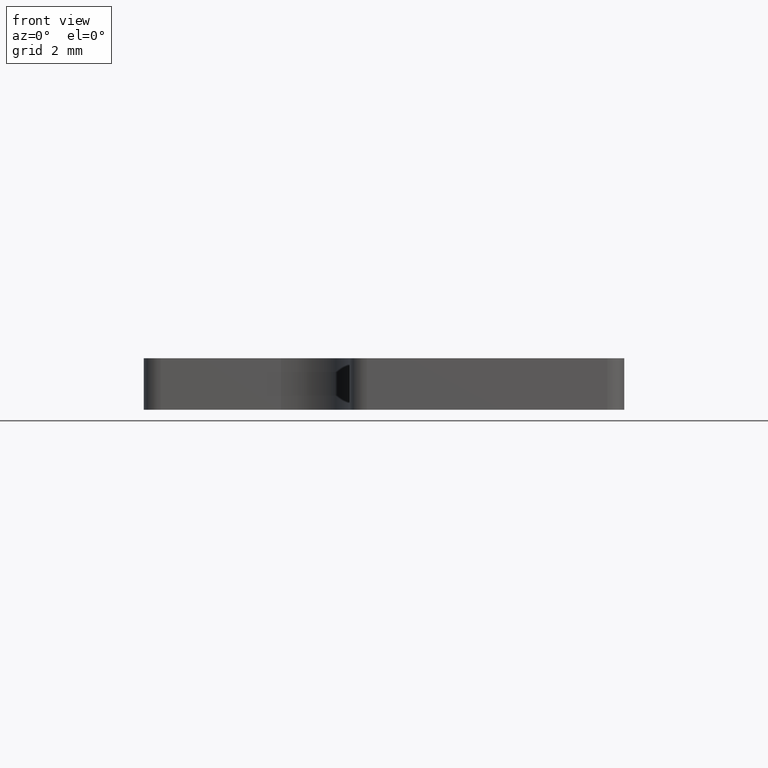
[diagram: clean part render]
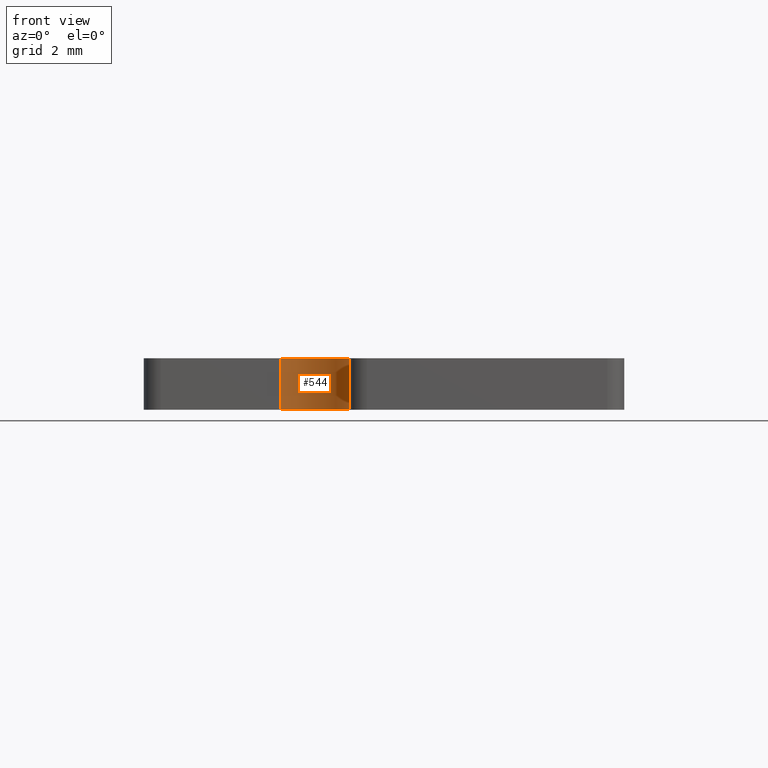
[diagram: same view with one face highlighted and labeled with its STEP entity id]
A machine part, front view. The second image highlights one B-rep face of the part: STEP entity #544.
In plain terms, the highlighted cylindrical surface (partial cylindrical patch) has radius 2 mm, axis along (0, 0, 1).
Its self-contained STEP definition (entity closure, byte-faithful):
#22 = VERTEX_POINT('',#23);
#23 = CARTESIAN_POINT('',(-2.,12.,0.));
#32 = PLANE('',#33);
#33 = AXIS2_PLACEMENT_3D('',#34,#35,#36);
#34 = CARTESIAN_POINT('',(0.,12.,0.));
#35 = DIRECTION('',(0.,-1.,0.));
#36 = DIRECTION('',(-1.,0.,0.));
#44 = PLANE('',#45);
#45 = AXIS2_PLACEMENT_3D('',#46,#47,#48);
#46 = CARTESIAN_POINT('',(2.2,9.2,0.));
#47 = DIRECTION('',(0.,0.,1.));
#48 = DIRECTION('',(1.,0.,0.));
#56 = EDGE_CURVE('',#22,#57,#59,.T.);
#57 = VERTEX_POINT('',#58);
#58 = CARTESIAN_POINT('',(-2.,12.,1.5));
#59 = SURFACE_CURVE('',#60,(#64,#71),.PCURVE_S1.);
#60 = LINE('',#61,#62);
#61 = CARTESIAN_POINT('',(-2.,12.,0.));
#62 = VECTOR('',#63,1.);
#63 = DIRECTION('',(0.,0.,1.));
#64 = PCURVE('',#32,#65);
#65 = DEFINITIONAL_REPRESENTATION('',(#66),#70);
#66 = LINE('',#67,#68);
#67 = CARTESIAN_POINT('',(2.,0.));
#68 = VECTOR('',#69,1.);
#69 = DIRECTION('',(0.,-1.));
#70 = ( GEOMETRIC_REPRESENTATION_CONTEXT(2) 
PARAMETRIC_REPRESENTATION_CONTEXT() REPRESENTATION_CONTEXT('2D SPACE',''
  ) );
#71 = PCURVE('',#72,#77);
#72 = CYLINDRICAL_SURFACE('',#73,2.);
#73 = AXIS2_PLACEMENT_3D('',#74,#75,#76);
#74 = CARTESIAN_POINT('',(-2.,10.,0.));
#75 = DIRECTION('',(0.,0.,1.));
#76 = DIRECTION('',(0.,1.,0.));
#77 = DEFINITIONAL_REPRESENTATION('',(#78),#82);
#78 = LINE('',#79,#80);
#79 = CARTESIAN_POINT('',(-0.,0.));
#80 = VECTOR('',#81,1.);
#81 = DIRECTION('',(-0.,1.));
#82 = ( GEOMETRIC_REPRESENTATION_CONTEXT(2) 
PARAMETRIC_REPRESENTATION_CONTEXT() REPRESENTATION_CONTEXT('2D SPACE',''
  ) );
#100 = PLANE('',#101);
#101 = AXIS2_PLACEMENT_3D('',#102,#103,#104);
#102 = CARTESIAN_POINT('',(2.2,9.2,1.5));
#103 = DIRECTION('',(0.,0.,1.));
#104 = DIRECTION('',(1.,0.,0.));
#142 = EDGE_CURVE('',#22,#143,#145,.T.);
#143 = VERTEX_POINT('',#144);
#144 = CARTESIAN_POINT('',(4.440892098501E-16,10.,0.));
#145 = SURFACE_CURVE('',#146,(#151,#162),.PCURVE_S1.);
#146 = CIRCLE('',#147,2.);
#147 = AXIS2_PLACEMENT_3D('',#148,#149,#150);
#148 = CARTESIAN_POINT('',(-2.,10.,0.));
#149 = DIRECTION('',(-0.,-0.,-1.));
#150 = DIRECTION('',(0.,-1.,0.));
#151 = PCURVE('',#44,#152);
#152 = DEFINITIONAL_REPRESENTATION('',(#153),#161);
#153 = ( BOUNDED_CURVE() B_SPLINE_CURVE(2,(#154,#155,#156,#157,#158,#159
,#160),.UNSPECIFIED.,.F.,.F.) B_SPLINE_CURVE_WITH_KNOTS((1,2,2,2,2,1),(
    -2.094395102393,0.,2.094395102393,4.188790204786,6.28318530718,
8.377580409573),.UNSPECIFIED.) CURVE() GEOMETRIC_REPRESENTATION_ITEM() 
RATIONAL_B_SPLINE_CURVE((1.,0.5,1.,0.5,1.,0.5,1.)) REPRESENTATION_ITEM(
  '') );
#154 = CARTESIAN_POINT('',(-4.2,-1.2));
#155 = CARTESIAN_POINT('',(-7.664101615138,-1.2));
#156 = CARTESIAN_POINT('',(-5.932050807569,1.8));
#157 = CARTESIAN_POINT('',(-4.2,4.8));
#158 = CARTESIAN_POINT('',(-2.467949192431,1.8));
#159 = CARTESIAN_POINT('',(-0.735898384862,-1.2));
#160 = CARTESIAN_POINT('',(-4.2,-1.2));
#161 = ( GEOMETRIC_REPRESENTATION_CONTEXT(2) 
PARAMETRIC_REPRESENTATION_CONTEXT() REPRESENTATION_CONTEXT('2D SPACE',''
  ) );
#162 = PCURVE('',#72,#163);
#163 = DEFINITIONAL_REPRESENTATION('',(#164),#168);
#164 = LINE('',#165,#166);
#165 = CARTESIAN_POINT('',(3.14159265359,-0.));
#166 = VECTOR('',#167,1.);
#167 = DIRECTION('',(-1.,0.));
#168 = ( GEOMETRIC_REPRESENTATION_CONTEXT(2) 
PARAMETRIC_REPRESENTATION_CONTEXT() REPRESENTATION_CONTEXT('2D SPACE',''
  ) );
#186 = PLANE('',#187);
#187 = AXIS2_PLACEMENT_3D('',#188,#189,#190);
#188 = CARTESIAN_POINT('',(0.,0.,0.));
#189 = DIRECTION('',(-1.,0.,0.));
#190 = DIRECTION('',(0.,1.,0.));
#544 = ADVANCED_FACE('',(#545),#72,.F.);
#545 = FACE_BOUND('',#546,.T.);
#546 = EDGE_LOOP('',(#547,#548,#571,#597));
#547 = ORIENTED_EDGE('',*,*,#142,.T.);
#548 = ORIENTED_EDGE('',*,*,#549,.T.);
#549 = EDGE_CURVE('',#143,#550,#552,.T.);
#550 = VERTEX_POINT('',#551);
#551 = CARTESIAN_POINT('',(4.440892098501E-16,10.,1.5));
#552 = SURFACE_CURVE('',#553,(#557,#564),.PCURVE_S1.);
#553 = LINE('',#554,#555);
#554 = CARTESIAN_POINT('',(4.440892098501E-16,10.,0.));
#555 = VECTOR('',#556,1.);
#556 = DIRECTION('',(0.,0.,1.));
#557 = PCURVE('',#72,#558);
#558 = DEFINITIONAL_REPRESENTATION('',(#559),#563);
#559 = LINE('',#560,#561);
#560 = CARTESIAN_POINT('',(-1.570796326795,0.));
#561 = VECTOR('',#562,1.);
#562 = DIRECTION('',(-0.,1.));
#563 = ( GEOMETRIC_REPRESENTATION_CONTEXT(2) 
PARAMETRIC_REPRESENTATION_CONTEXT() REPRESENTATION_CONTEXT('2D SPACE',''
  ) );
#564 = PCURVE('',#186,#565);
#565 = DEFINITIONAL_REPRESENTATION('',(#566),#570);
#566 = LINE('',#567,#568);
#567 = CARTESIAN_POINT('',(10.,0.));
#568 = VECTOR('',#569,1.);
#569 = DIRECTION('',(0.,-1.));
#570 = ( GEOMETRIC_REPRESENTATION_CONTEXT(2) 
PARAMETRIC_REPRESENTATION_CONTEXT() REPRESENTATION_CONTEXT('2D SPACE',''
  ) );
#571 = ORIENTED_EDGE('',*,*,#572,.F.);
#572 = EDGE_CURVE('',#57,#550,#573,.T.);
#573 = SURFACE_CURVE('',#574,(#579,#586),.PCURVE_S1.);
#574 = CIRCLE('',#575,2.);
#575 = AXIS2_PLACEMENT_3D('',#576,#577,#578);
#576 = CARTESIAN_POINT('',(-2.,10.,1.5));
#577 = DIRECTION('',(-0.,-0.,-1.));
#578 = DIRECTION('',(0.,-1.,0.));
#579 = PCURVE('',#72,#580);
#580 = DEFINITIONAL_REPRESENTATION('',(#581),#585);
#581 = LINE('',#582,#583);
#582 = CARTESIAN_POINT('',(3.14159265359,1.5));
#583 = VECTOR('',#584,1.);
#584 = DIRECTION('',(-1.,0.));
#585 = ( GEOMETRIC_REPRESENTATION_CONTEXT(2) 
PARAMETRIC_REPRESENTATION_CONTEXT() REPRESENTATION_CONTEXT('2D SPACE',''
  ) );
#586 = PCURVE('',#100,#587);
#587 = DEFINITIONAL_REPRESENTATION('',(#588),#596);
#588 = ( BOUNDED_CURVE() B_SPLINE_CURVE(2,(#589,#590,#591,#592,#593,#594
,#595),.UNSPECIFIED.,.F.,.F.) B_SPLINE_CURVE_WITH_KNOTS((1,2,2,2,2,1),(
    -2.094395102393,0.,2.094395102393,4.188790204786,6.28318530718,
8.377580409573),.UNSPECIFIED.) CURVE() GEOMETRIC_REPRESENTATION_ITEM() 
RATIONAL_B_SPLINE_CURVE((1.,0.5,1.,0.5,1.,0.5,1.)) REPRESENTATION_ITEM(
  '') );
#589 = CARTESIAN_POINT('',(-4.2,-1.2));
#590 = CARTESIAN_POINT('',(-7.664101615138,-1.2));
#591 = CARTESIAN_POINT('',(-5.932050807569,1.8));
#592 = CARTESIAN_POINT('',(-4.2,4.8));
#593 = CARTESIAN_POINT('',(-2.467949192431,1.8));
#594 = CARTESIAN_POINT('',(-0.735898384862,-1.2));
#595 = CARTESIAN_POINT('',(-4.2,-1.2));
#596 = ( GEOMETRIC_REPRESENTATION_CONTEXT(2) 
PARAMETRIC_REPRESENTATION_CONTEXT() REPRESENTATION_CONTEXT('2D SPACE',''
  ) );
#597 = ORIENTED_EDGE('',*,*,#56,.F.);